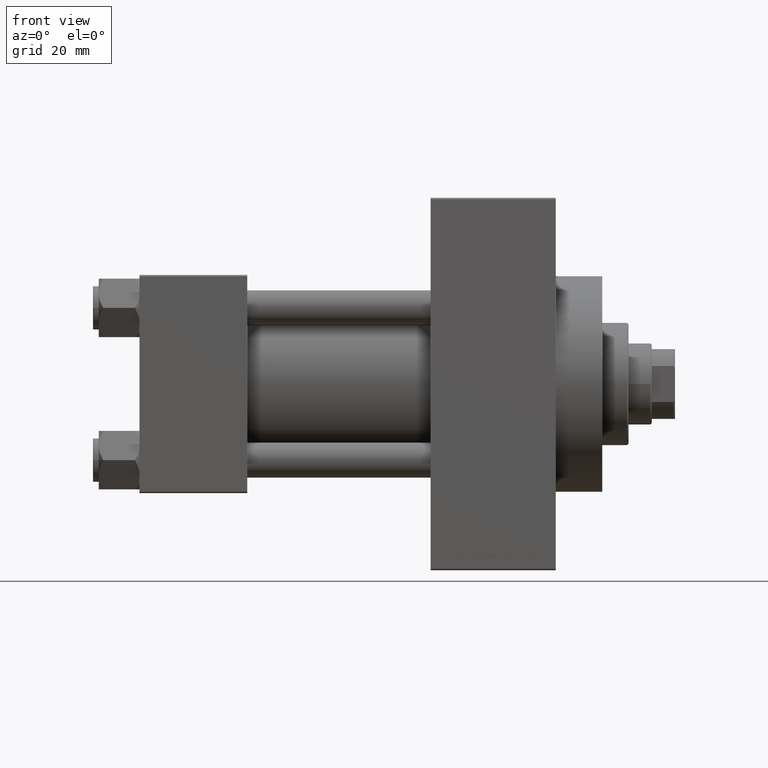
[diagram: clean part render]
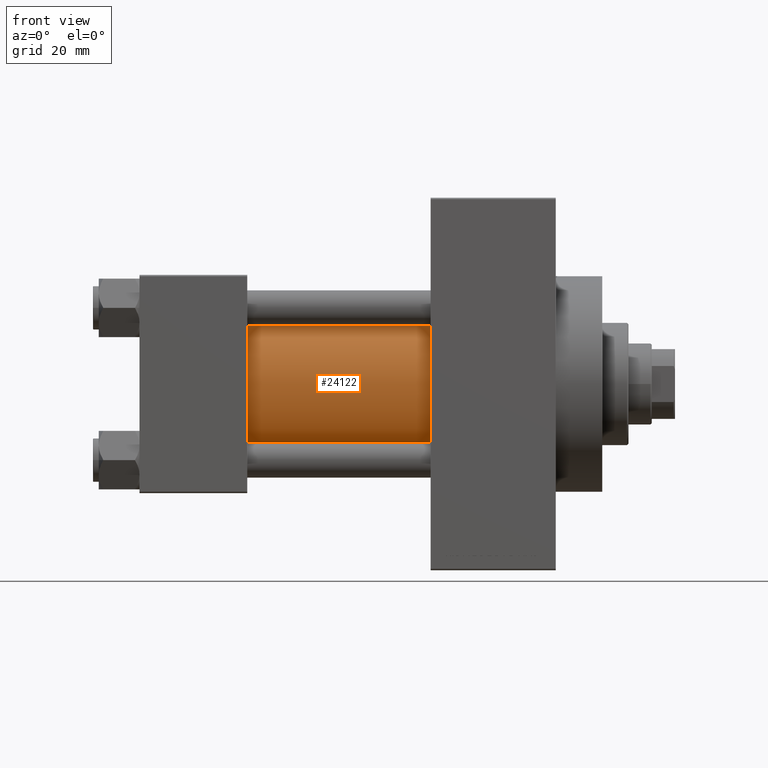
[diagram: same view with one face highlighted and labeled with its STEP entity id]
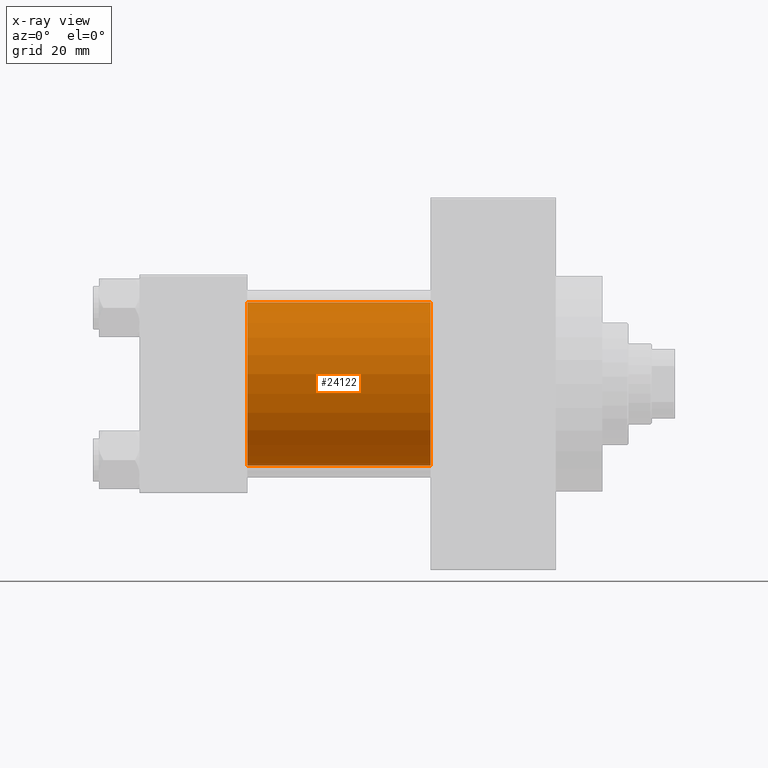
[diagram: x-ray of the same camera — body ghosted, the highlighted face saturated]
A machine part, front view. The second image highlights one B-rep face of the part: STEP entity #24122.
The next image is the same camera in x-ray: the body ghosted, the highlighted face saturated — about 2% of this face is hidden behind the body in this view.
In plain terms, the highlighted cylindrical surface (partial cylindrical patch) has radius 28 mm, axis along (-1, -0, -0).
Its self-contained STEP definition (entity closure, byte-faithful):
#356 = EDGE_CURVE ( 'NONE', #45597, #26114, #2045, .T. ) ;
#1657 = DIRECTION ( 'NONE',  ( 1.000000000000000000, 0.000000000000000000, 0.000000000000000000 ) ) ;
#2045 = LINE ( 'NONE', #28003, #23910 ) ;
#3512 = CYLINDRICAL_SURFACE ( 'NONE', #5465, 28.00000000000000000 ) ;
#5465 = AXIS2_PLACEMENT_3D ( 'NONE', #17766, #26207, #7260 ) ;
#7036 = ORIENTED_EDGE ( 'NONE', *, *, #356, .T. ) ;
#7260 = DIRECTION ( 'NONE',  ( 0.000000000000000000, 0.000000000000000000, 1.000000000000000000 ) ) ;
#7866 = AXIS2_PLACEMENT_3D ( 'NONE', #46010, #23599, #15622 ) ;
#8510 = ORIENTED_EDGE ( 'NONE', *, *, #33895, .F. ) ;
#10278 = FACE_OUTER_BOUND ( 'NONE', #26780, .T. ) ;
#10505 = CARTESIAN_POINT ( 'NONE',  ( 37.00000000000000711, 8.269258236473784371E-16, -28.00000000000000000 ) ) ;
#15019 = VECTOR ( 'NONE', #35030, 1000.000000000000000 ) ;
#15622 = DIRECTION ( 'NONE',  ( 0.000000000000000000, 0.000000000000000000, 1.000000000000000000 ) ) ;
#16137 = DIRECTION ( 'NONE',  ( 0.000000000000000000, 0.000000000000000000, -1.000000000000000000 ) ) ;
#17766 = CARTESIAN_POINT ( 'NONE',  ( 100.0000000000000000, -2.602085213965210642E-15, 0.000000000000000000 ) ) ;
#18384 = CIRCLE ( 'NONE', #41448, 28.00000000000000000 ) ;
#19824 = CARTESIAN_POINT ( 'NONE',  ( 100.0000000000000000, 8.269258236473784371E-16, -28.00000000000000000 ) ) ;
#20077 = LINE ( 'NONE', #19824, #15019 ) ;
#21443 = VERTEX_POINT ( 'NONE', #34467 ) ;
#23539 = EDGE_CURVE ( 'NONE', #21443, #34663, #20077, .T. ) ;
#23599 = DIRECTION ( 'NONE',  ( 1.000000000000000000, -0.000000000000000000, 0.000000000000000000 ) ) ;
#23910 = VECTOR ( 'NONE', #43185, 1000.000000000000000 ) ;
#24122 = ADVANCED_FACE ( 'NONE', ( #10278 ), #3512, .T. ) ;
#25522 = ORIENTED_EDGE ( 'NONE', *, *, #29820, .T. ) ;
#26114 = VERTEX_POINT ( 'NONE', #38247 ) ;
#26207 = DIRECTION ( 'NONE',  ( -1.000000000000000000, -0.000000000000000000, -0.000000000000000000 ) ) ;
#26780 = EDGE_LOOP ( 'NONE', ( #34638, #8510, #7036, #25522 ) ) ;
#28003 = CARTESIAN_POINT ( 'NONE',  ( 100.0000000000000000, -2.602085213965210642E-15, 28.00000000000000000 ) ) ;
#29820 = EDGE_CURVE ( 'NONE', #26114, #34663, #34959, .T. ) ;
#32188 = CARTESIAN_POINT ( 'NONE',  ( 100.0000000000000000, -2.602085213965210642E-15, 28.00000000000000000 ) ) ;
#33895 = EDGE_CURVE ( 'NONE', #45597, #21443, #18384, .T. ) ;
#34467 = CARTESIAN_POINT ( 'NONE',  ( 100.0000000000000000, 8.269258236473784371E-16, -28.00000000000000000 ) ) ;
#34638 = ORIENTED_EDGE ( 'NONE', *, *, #23539, .F. ) ;
#34663 = VERTEX_POINT ( 'NONE', #10505 ) ;
#34826 = CARTESIAN_POINT ( 'NONE',  ( 100.0000000000000000, -2.602085213965210642E-15, 0.000000000000000000 ) ) ;
#34959 = CIRCLE ( 'NONE', #7866, 28.00000000000000000 ) ;
#35030 = DIRECTION ( 'NONE',  ( -1.000000000000000000, -0.000000000000000000, -0.000000000000000000 ) ) ;
#38247 = CARTESIAN_POINT ( 'NONE',  ( 37.00000000000000711, -2.602085213965210642E-15, 28.00000000000000000 ) ) ;
#41448 = AXIS2_PLACEMENT_3D ( 'NONE', #34826, #1657, #16137 ) ;
#43185 = DIRECTION ( 'NONE',  ( -1.000000000000000000, -0.000000000000000000, -0.000000000000000000 ) ) ;
#45597 = VERTEX_POINT ( 'NONE', #32188 ) ;
#46010 = CARTESIAN_POINT ( 'NONE',  ( 37.00000000000000711, -2.602085213965210642E-15, 0.000000000000000000 ) ) ;